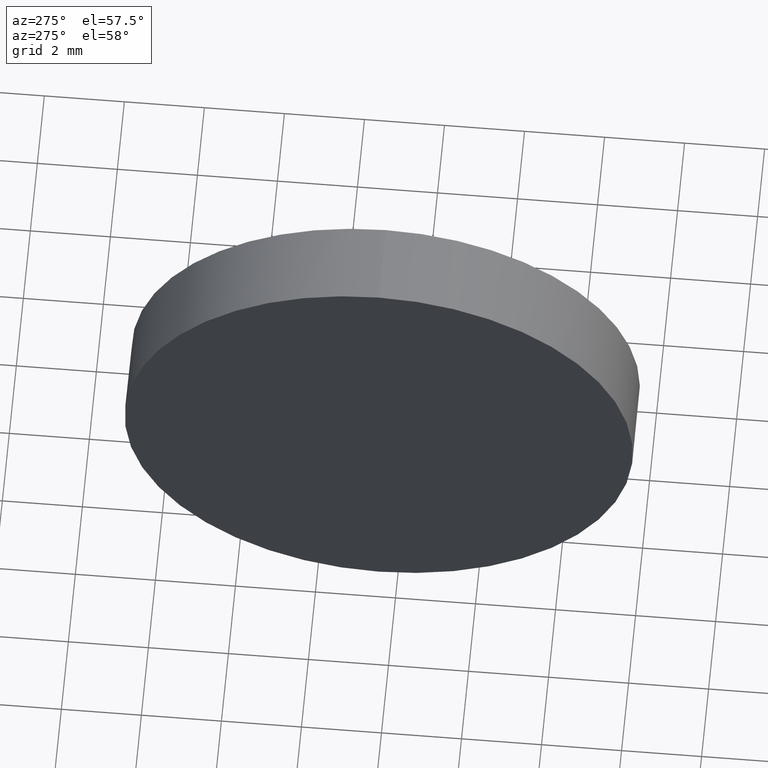
[diagram: clean part render]
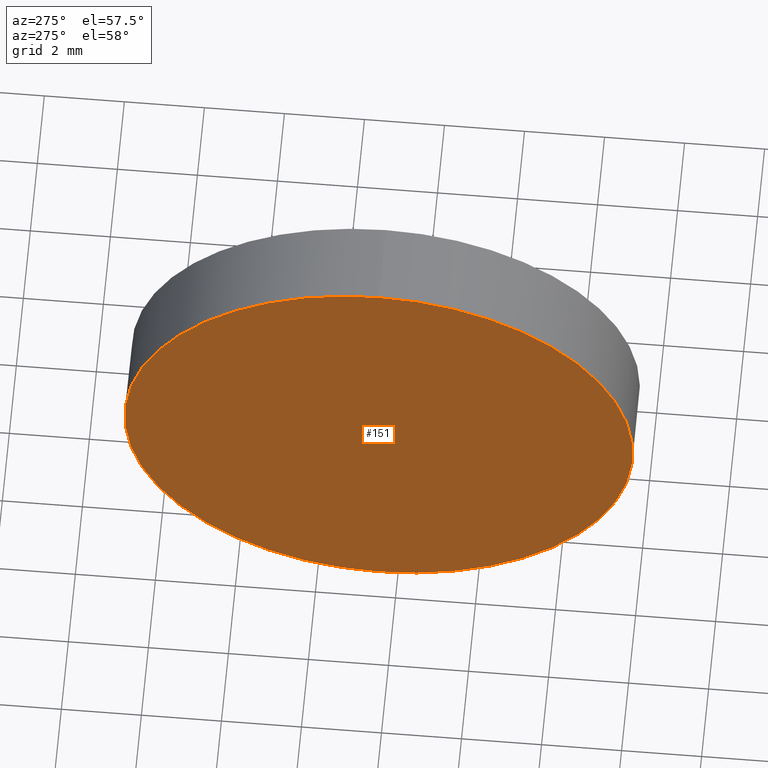
[diagram: same view with one face highlighted and labeled with its STEP entity id]
A machine part, auxiliary view. The second image highlights one B-rep face of the part: STEP entity #151.
In plain terms, the highlighted planar face has unit normal (1, 0, 0).
Its self-contained STEP definition (entity closure, byte-faithful):
#9 = ORIENTED_EDGE ( 'NONE', *, *, #22, .T. ) ;
#22 = EDGE_CURVE ( 'NONE', #163, #23, #106, .T. ) ;
#23 = VERTEX_POINT ( 'NONE', #84 ) ;
#42 = AXIS2_PLACEMENT_3D ( 'NONE', #147, #164, #182 ) ;
#49 = FACE_OUTER_BOUND ( 'NONE', #117, .T. ) ;
#65 = DIRECTION ( 'NONE',  ( 0.0000000000000000000, 0.0000000000000000000, -1.000000000000000000 ) ) ;
#67 = CARTESIAN_POINT ( 'NONE',  ( 532.5609711574720700, 126.4674666773100100, 0.0000000000000000000 ) ) ;
#84 = CARTESIAN_POINT ( 'NONE',  ( 532.5609711574720700, 126.4674666773100100, 6.350000000000022700 ) ) ;
#97 = DIRECTION ( 'NONE',  ( -1.000000000000000000, -0.0000000000000000000, -0.0000000000000000000 ) ) ;
#101 = CARTESIAN_POINT ( 'NONE',  ( 532.5609711574720700, 126.4674666773100100, -6.350000000000022700 ) ) ;
#106 = CIRCLE ( 'NONE', #183, 6.350000000000022700 ) ;
#117 = EDGE_LOOP ( 'NONE', ( #167, #9 ) ) ;
#131 = CIRCLE ( 'NONE', #42, 6.350000000000022700 ) ;
#145 = EDGE_CURVE ( 'NONE', #23, #163, #131, .T. ) ;
#147 = CARTESIAN_POINT ( 'NONE',  ( 532.5609711574720700, 126.4674666773100100, 0.0000000000000000000 ) ) ;
#151 = ADVANCED_FACE ( 'NONE', ( #49 ), #181, .F. ) ;
#154 = CARTESIAN_POINT ( 'NONE',  ( 532.5609711574720700, 126.4674666773100100, 0.0000000000000000000 ) ) ;
#155 = DIRECTION ( 'NONE',  ( 0.0000000000000000000, 0.0000000000000000000, 1.000000000000000000 ) ) ;
#163 = VERTEX_POINT ( 'NONE', #101 ) ;
#164 = DIRECTION ( 'NONE',  ( -1.000000000000000000, -0.0000000000000000000, -0.0000000000000000000 ) ) ;
#165 = DIRECTION ( 'NONE',  ( 1.000000000000000000, 0.0000000000000000000, 0.0000000000000000000 ) ) ;
#167 = ORIENTED_EDGE ( 'NONE', *, *, #145, .T. ) ;
#177 = AXIS2_PLACEMENT_3D ( 'NONE', #67, #165, #65 ) ;
#181 = PLANE ( 'NONE',  #177 ) ;
#182 = DIRECTION ( 'NONE',  ( 0.0000000000000000000, 0.0000000000000000000, 1.000000000000000000 ) ) ;
#183 = AXIS2_PLACEMENT_3D ( 'NONE', #154, #97, #155 ) ;